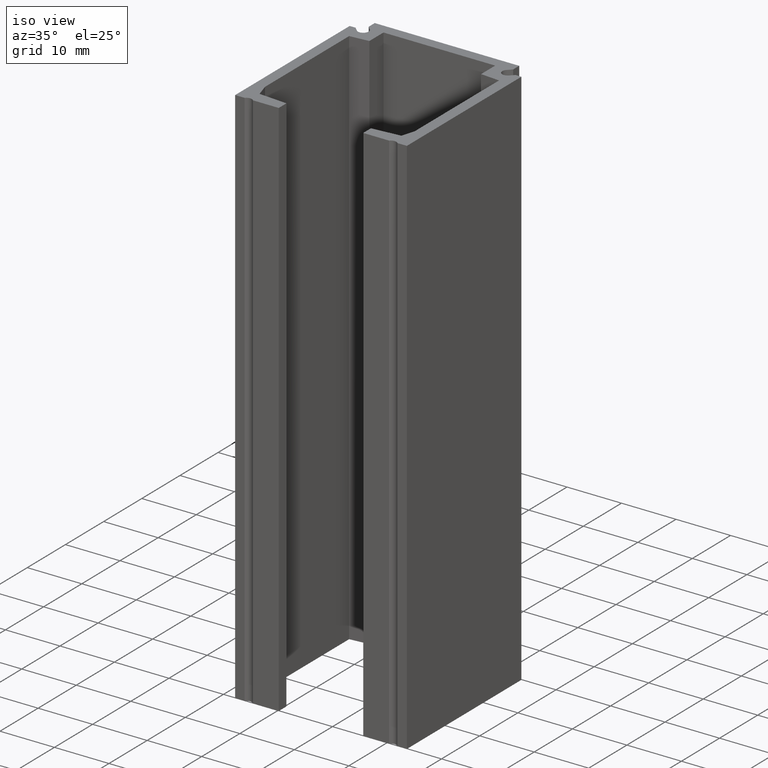
[diagram: clean part render]
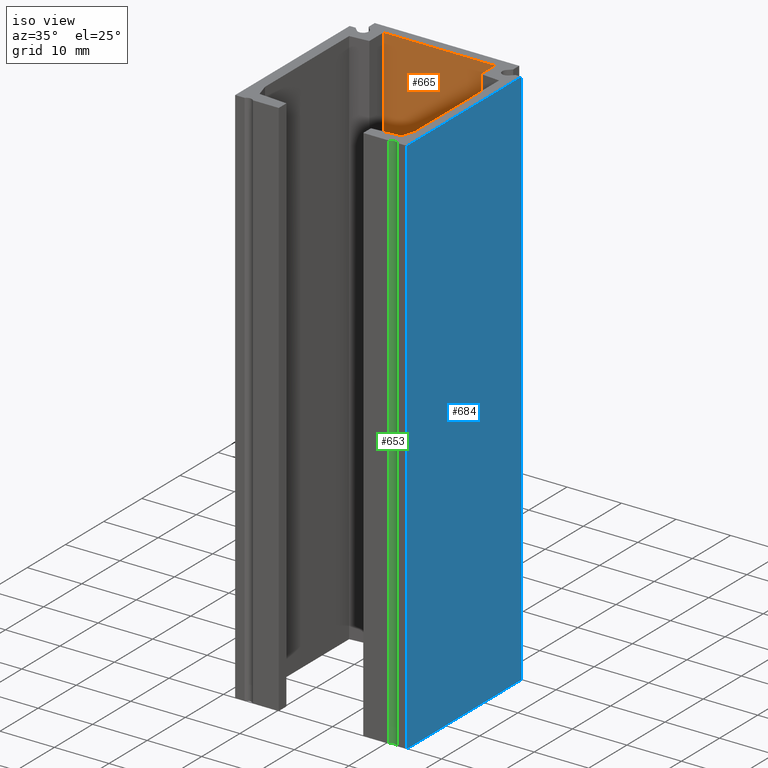
[diagram: same view with three faces highlighted in distinct colors, each labeled with its STEP entity id]
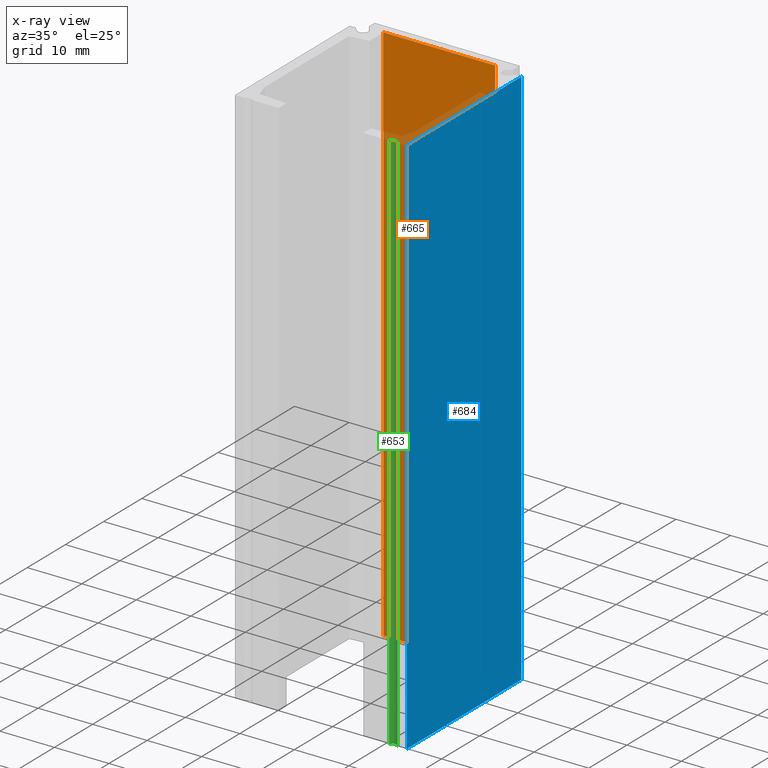
[diagram: x-ray of the same camera — body ghosted, the three highlighted faces saturated]
A machine part, iso view with three faces highlighted in distinct colors.
The next image is the same camera in x-ray (body ghosted, the three faces saturated) — at least one of them is partly hidden behind the body in this view.
Their STEP definitions:

[orange] entity #665 — the highlighted planar face has unit normal (0, -1, 0).
#25=PLANE('',#728);
#57=FACE_OUTER_BOUND('',#91,.T.);
#91=EDGE_LOOP('',(#533,#534,#535,#536));
#129=LINE('',#971,#217);
#163=LINE('',#1041,#251);
#164=LINE('',#1044,#252);
#165=LINE('',#1045,#253);
#217=VECTOR('',#788,10.);
#251=VECTOR('',#840,10.);
#252=VECTOR('',#843,10.);
#253=VECTOR('',#844,10.);
#314=VERTEX_POINT('',#968);
#315=VERTEX_POINT('',#970);
#342=VERTEX_POINT('',#1039);
#343=VERTEX_POINT('',#1043);
#381=EDGE_CURVE('',#314,#315,#129,.T.);
#417=EDGE_CURVE('',#314,#342,#163,.T.);
#418=EDGE_CURVE('',#342,#343,#164,.T.);
#419=EDGE_CURVE('',#315,#343,#165,.T.);
#533=ORIENTED_EDGE('',*,*,#418,.T.);
#534=ORIENTED_EDGE('',*,*,#419,.F.);
#535=ORIENTED_EDGE('',*,*,#381,.F.);
#536=ORIENTED_EDGE('',*,*,#417,.T.);
#665=ADVANCED_FACE('',(#57),#25,.T.);
#728=AXIS2_PLACEMENT_3D('',#1042,#841,#842);
#788=DIRECTION('',(-1.,0.,0.));
#840=DIRECTION('',(0.,0.,1.));
#841=DIRECTION('center_axis',(0.,-1.,0.));
#842=DIRECTION('ref_axis',(1.,0.,0.));
#843=DIRECTION('',(-1.,0.,0.));
#844=DIRECTION('',(0.,0.,1.));
#968=CARTESIAN_POINT('',(10.2499999999984,-1.99960678118655,0.));
#970=CARTESIAN_POINT('',(-10.2500000000017,-1.99960678118655,0.));
#971=CARTESIAN_POINT('',(-5.12495742516077,-1.99960678118655,0.));
#1039=CARTESIAN_POINT('',(10.2499999999984,-1.99960678118655,100.));
#1041=CARTESIAN_POINT('',(10.2499999999984,-1.99960678118655,0.));
#1042=CARTESIAN_POINT('Origin',(-10.2500000000017,-1.99960678118655,0.));
#1043=CARTESIAN_POINT('',(-10.2500000000017,-1.99960678118655,100.));
#1044=CARTESIAN_POINT('',(-5.12495742516077,-1.99960678118655,100.));
#1045=CARTESIAN_POINT('',(-10.2500000000017,-1.99960678118655,0.));

[blue] entity #684 — the highlighted planar face has unit normal (1, 0, 0).
#42=PLANE('',#749);
#76=FACE_OUTER_BOUND('',#110,.T.);
#110=EDGE_LOOP('',(#609,#610,#611,#612));
#121=LINE('',#955,#209);
#148=LINE('',#1011,#236);
#198=LINE('',#1115,#286);
#199=LINE('',#1117,#287);
#209=VECTOR('',#778,10.);
#236=VECTOR('',#811,10.);
#286=VECTOR('',#917,10.);
#287=VECTOR('',#920,10.);
#307=VERTEX_POINT('',#952);
#308=VERTEX_POINT('',#954);
#334=VERTEX_POINT('',#1009);
#360=VERTEX_POINT('',#1113);
#373=EDGE_CURVE('',#307,#308,#121,.T.);
#402=EDGE_CURVE('',#334,#307,#148,.T.);
#454=EDGE_CURVE('',#334,#360,#198,.T.);
#455=EDGE_CURVE('',#360,#308,#199,.T.);
#609=ORIENTED_EDGE('',*,*,#455,.T.);
#610=ORIENTED_EDGE('',*,*,#373,.F.);
#611=ORIENTED_EDGE('',*,*,#402,.F.);
#612=ORIENTED_EDGE('',*,*,#454,.T.);
#684=ADVANCED_FACE('',(#76),#42,.T.);
#749=AXIS2_PLACEMENT_3D('',#1116,#918,#919);
#778=DIRECTION('',(0.,0.,1.));
#811=DIRECTION('',(1.48029851117105E-16,-1.,0.));
#917=DIRECTION('',(0.,0.,1.));
#918=DIRECTION('center_axis',(1.,1.48029851117105E-16,0.));
#919=DIRECTION('ref_axis',(-1.48029851117105E-16,1.,0.));
#920=DIRECTION('',(1.48029851117105E-16,-1.,0.));
#952=CARTESIAN_POINT('',(15.7500342193583,-32.9996903575093,0.));
#954=CARTESIAN_POINT('',(15.7500342193583,-32.9996903575093,100.));
#955=CARTESIAN_POINT('',(15.7500342193583,-32.9996903575093,0.));
#1009=CARTESIAN_POINT('',(15.7500342193583,-2.99971356237311,0.));
#1011=CARTESIAN_POINT('',(15.7500342193583,-24.7498438524231,0.));
#1113=CARTESIAN_POINT('',(15.7500342193583,-2.99971356237311,100.));
#1115=CARTESIAN_POINT('',(15.7500342193583,-2.99971356237311,0.));
#1116=CARTESIAN_POINT('Origin',(15.7500342193583,-32.9996903575093,0.));
#1117=CARTESIAN_POINT('',(15.7500342193583,-24.7498438524231,100.));

[green] entity #653 — the highlighted cylindrical surface (edge-blend (fillet) strip) has radius 1 mm, axis along (0, 0, -1).
#45=FACE_OUTER_BOUND('',#79,.T.);
#79=EDGE_LOOP('',(#457,#458,#459,#460));
#113=LINE('',#932,#201);
#114=LINE('',#935,#202);
#201=VECTOR('',#758,10.);
#202=VECTOR('',#761,10.);
#289=CIRCLE('',#711,1.);
#290=CIRCLE('',#712,1.);
#297=VERTEX_POINT('',#928);
#298=VERTEX_POINT('',#929);
#299=VERTEX_POINT('',#931);
#300=VERTEX_POINT('',#933);
#361=EDGE_CURVE('',#297,#298,#289,.T.);
#362=EDGE_CURVE('',#299,#297,#113,.T.);
#363=EDGE_CURVE('',#300,#299,#290,.T.);
#364=EDGE_CURVE('',#298,#300,#114,.T.);
#457=ORIENTED_EDGE('',*,*,#361,.F.);
#458=ORIENTED_EDGE('',*,*,#362,.F.);
#459=ORIENTED_EDGE('',*,*,#363,.F.);
#460=ORIENTED_EDGE('',*,*,#364,.F.);
#649=CYLINDRICAL_SURFACE('',#710,1.);
#653=ADVANCED_FACE('',(#45),#649,.F.);
#710=AXIS2_PLACEMENT_3D('',#927,#754,#755);
#711=AXIS2_PLACEMENT_3D('',#930,#756,#757);
#712=AXIS2_PLACEMENT_3D('',#934,#759,#760);
#754=DIRECTION('center_axis',(0.,0.,-1.));
#755=DIRECTION('ref_axis',(0.75993420767853,0.650000000000004,0.));
#756=DIRECTION('center_axis',(0.,0.,1.));
#757=DIRECTION('ref_axis',(0.75993420767853,0.650000000000004,0.));
#758=DIRECTION('',(0.,0.,-1.));
#759=DIRECTION('center_axis',(0.,0.,-1.));
#760=DIRECTION('ref_axis',(0.75993420767853,0.650000000000004,0.));
#761=DIRECTION('',(0.,0.,1.));
#927=CARTESIAN_POINT('Origin',(13.2498639199982,-33.6499946946739,100.));
#928=CARTESIAN_POINT('',(14.0095377112171,-32.9996903575093,0.));
#929=CARTESIAN_POINT('',(12.4901901287794,-32.9996903575093,0.));
#930=CARTESIAN_POINT('Origin',(13.2498639199982,-33.6499946946739,0.));
#931=CARTESIAN_POINT('',(14.0095377112171,-32.9996903575093,100.));
#932=CARTESIAN_POINT('',(14.0095377112171,-32.9996903575093,100.));
#933=CARTESIAN_POINT('',(12.4901901287794,-32.9996903575093,100.));
#934=CARTESIAN_POINT('Origin',(13.2498639199982,-33.6499946946739,100.));
#935=CARTESIAN_POINT('',(12.4901901287794,-32.9996903575093,100.));